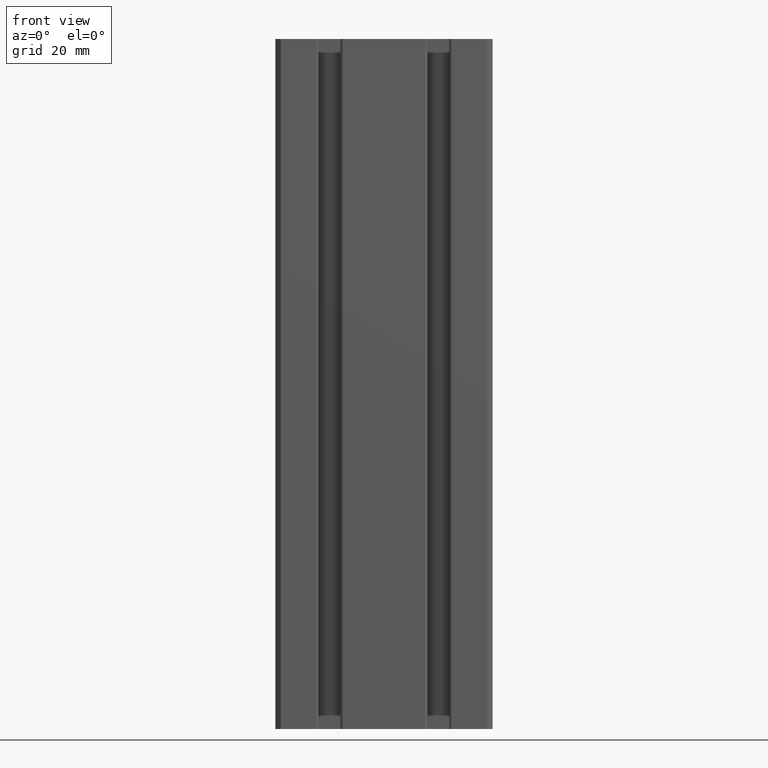
[diagram: clean part render]
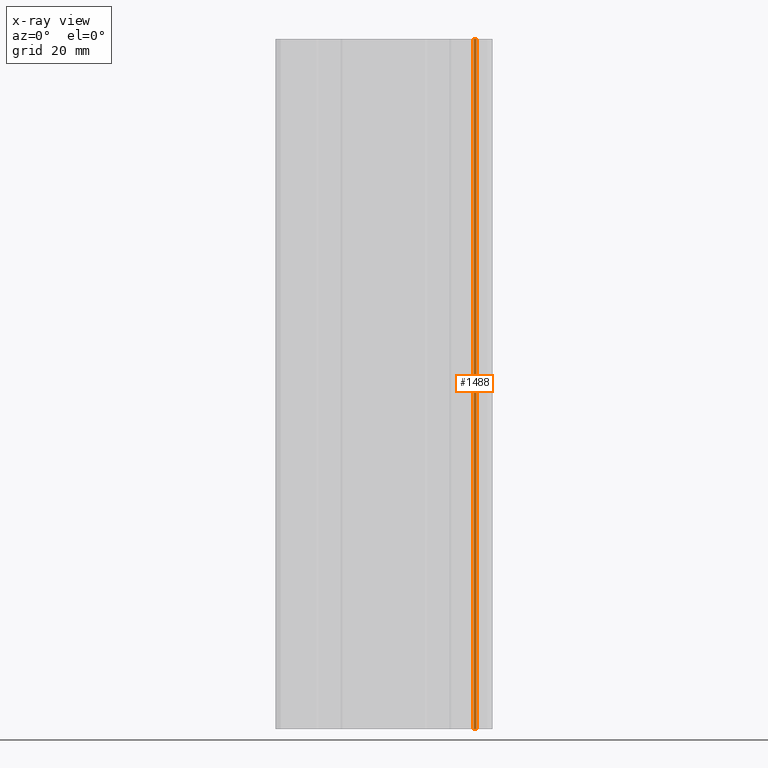
[diagram: x-ray — body ghosted, one internal face saturated and labeled with its STEP entity id]
A machine part, front view, then the same camera in x-ray: the body is ghosted and one INTERNAL B-rep face — a face not visible from any outside direction — is saturated and labeled: STEP entity #1488.
In plain terms, the highlighted cylindrical surface (edge-blend (fillet) strip) has radius 1.5 mm, axis along (0, 0, 1).
Its self-contained STEP definition (entity closure, byte-faithful):
#27 = EDGE_CURVE ( 'NONE', #2359, #364, #3110, .T. ) ;
#154 = VECTOR ( 'NONE', #363, 1000.000000000000000 ) ;
#167 = CYLINDRICAL_SURFACE ( 'NONE', #350, 1.499999999999999556 ) ;
#304 = CARTESIAN_POINT ( 'NONE',  ( 34.07508989998569859, 10.42086389943499825, -127.0000000000000000 ) ) ;
#350 = AXIS2_PLACEMENT_3D ( 'NONE', #1641, #3833, #1953 ) ;
#363 = DIRECTION ( 'NONE',  ( 0.000000000000000000, 0.000000000000000000, 1.000000000000000000 ) ) ;
#364 = VERTEX_POINT ( 'NONE', #625 ) ;
#497 = VERTEX_POINT ( 'NONE', #1702 ) ;
#625 = CARTESIAN_POINT ( 'NONE',  ( 33.01442972820587585, 9.981524071214808558, 127.0000000000000000 ) ) ;
#693 = AXIS2_PLACEMENT_3D ( 'NONE', #1450, #2401, #2685 ) ;
#1092 = CIRCLE ( 'NONE', #2704, 1.499999999999999556 ) ;
#1108 = ORIENTED_EDGE ( 'NONE', *, *, #3265, .T. ) ;
#1331 = CARTESIAN_POINT ( 'NONE',  ( 34.07508989998569859, 10.42086389943499825, -127.0000000000000000 ) ) ;
#1398 = ORIENTED_EDGE ( 'NONE', *, *, #27, .F. ) ;
#1450 = CARTESIAN_POINT ( 'NONE',  ( 34.07508989998571280, 8.920863899434998245, -127.0000000000000000 ) ) ;
#1455 = CARTESIAN_POINT ( 'NONE',  ( 34.07508989998571280, 8.920863899434998245, 127.0000000000000000 ) ) ;
#1487 = VECTOR ( 'NONE', #2129, 1000.000000000000000 ) ;
#1488 = ADVANCED_FACE ( 'NONE', ( #3813 ), #167, .F. ) ;
#1626 = EDGE_CURVE ( 'NONE', #3840, #2359, #3196, .T. ) ;
#1641 = CARTESIAN_POINT ( 'NONE',  ( 34.07508989998571280, 8.920863899434998245, -127.0000000000000000 ) ) ;
#1692 = CARTESIAN_POINT ( 'NONE',  ( 33.01442972820587585, 9.981524071214808558, -127.0000000000000000 ) ) ;
#1702 = CARTESIAN_POINT ( 'NONE',  ( 34.07508989998569859, 10.42086389943499825, 127.0000000000000000 ) ) ;
#1714 = EDGE_LOOP ( 'NONE', ( #2112, #3929, #1108, #1398 ) ) ;
#1953 = DIRECTION ( 'NONE',  ( -9.251858538542973800E-15, 1.000000000000000000, 0.000000000000000000 ) ) ;
#2112 = ORIENTED_EDGE ( 'NONE', *, *, #1626, .F. ) ;
#2129 = DIRECTION ( 'NONE',  ( 0.000000000000000000, 0.000000000000000000, 1.000000000000000000 ) ) ;
#2283 = EDGE_CURVE ( 'NONE', #3840, #497, #3115, .T. ) ;
#2359 = VERTEX_POINT ( 'NONE', #1692 ) ;
#2401 = DIRECTION ( 'NONE',  ( 0.000000000000000000, 0.000000000000000000, 1.000000000000000000 ) ) ;
#2685 = DIRECTION ( 'NONE',  ( -9.251858538542973800E-15, 1.000000000000000000, 0.000000000000000000 ) ) ;
#2704 = AXIS2_PLACEMENT_3D ( 'NONE', #1455, #3922, #3006 ) ;
#3006 = DIRECTION ( 'NONE',  ( -9.251858538542973800E-15, 1.000000000000000000, 0.000000000000000000 ) ) ;
#3110 = LINE ( 'NONE', #3355, #1487 ) ;
#3115 = LINE ( 'NONE', #304, #154 ) ;
#3196 = CIRCLE ( 'NONE', #693, 1.499999999999999556 ) ;
#3265 = EDGE_CURVE ( 'NONE', #497, #364, #1092, .T. ) ;
#3355 = CARTESIAN_POINT ( 'NONE',  ( 33.01442972820587585, 9.981524071214808558, -127.0000000000000000 ) ) ;
#3813 = FACE_OUTER_BOUND ( 'NONE', #1714, .T. ) ;
#3833 = DIRECTION ( 'NONE',  ( 0.000000000000000000, 0.000000000000000000, 1.000000000000000000 ) ) ;
#3840 = VERTEX_POINT ( 'NONE', #1331 ) ;
#3922 = DIRECTION ( 'NONE',  ( 0.000000000000000000, 0.000000000000000000, 1.000000000000000000 ) ) ;
#3929 = ORIENTED_EDGE ( 'NONE', *, *, #2283, .T. ) ;